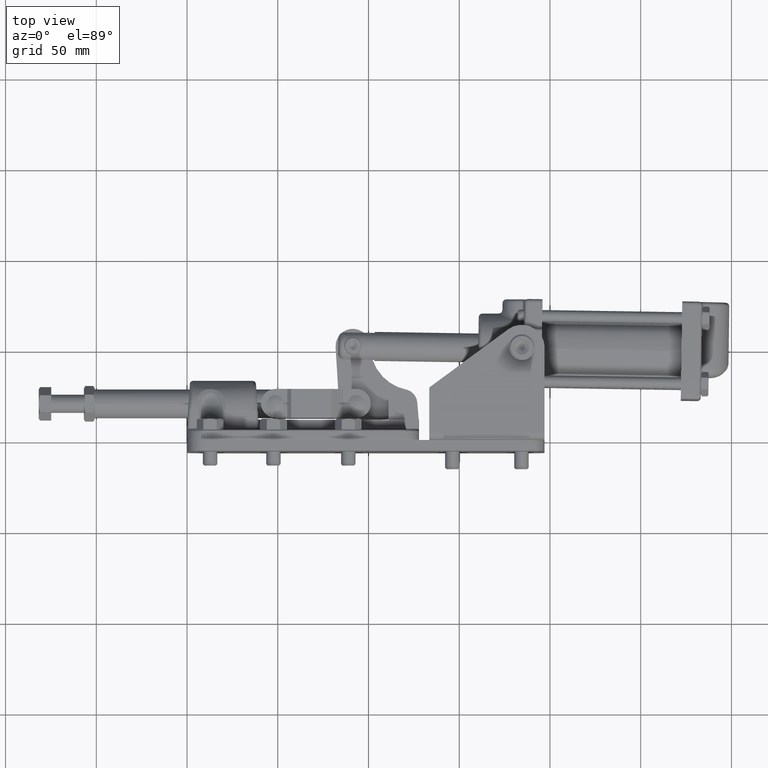
[diagram: clean part render]
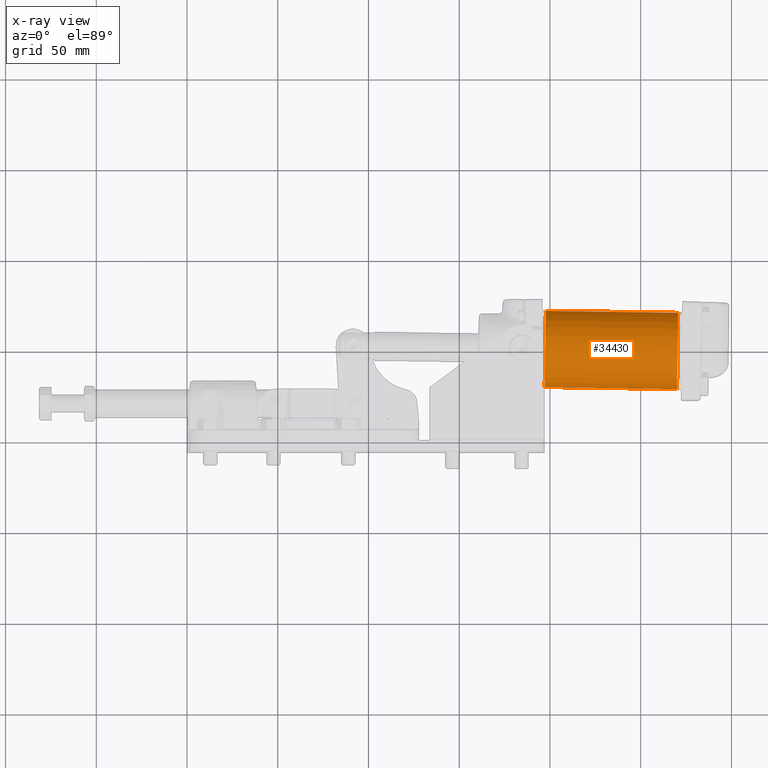
[diagram: x-ray — body ghosted, one internal face saturated and labeled with its STEP entity id]
A machine part, top view, then the same camera in x-ray: the body is ghosted and one INTERNAL B-rep face — a face not visible from any outside direction — is saturated and labeled: STEP entity #34430.
In plain terms, the highlighted cylindrical surface (partial cylindrical patch) has radius 21 mm, axis along (-0.9999, 0.0153, -0).
Its self-contained STEP definition (entity closure, byte-faithful):
#906 = CARTESIAN_POINT ( 'NONE',  ( 331.8796088133971700, 48.73779773850176200, 3.855883951699961100E-014 ) ) ;
#1017 = CARTESIAN_POINT ( 'NONE',  ( 331.5573074281377300, 27.74027117423567600, 3.855883951699961100E-014 ) ) ;
#1272 = AXIS2_PLACEMENT_3D ( 'NONE', #22554, #6576, #25260 ) ;
#4147 = DIRECTION ( 'NONE',  ( 0.9998822173460040200, -0.01534768501235420400, 1.225670896031800800E-016 ) ) ;
#6576 = DIRECTION ( 'NONE',  ( 0.9998822173460041300, -0.01534768501235420100, 9.312529166378306600E-017 ) ) ;
#7347 = ORIENTED_EDGE ( 'NONE', *, *, #31209, .F. ) ;
#8732 = VERTEX_POINT ( 'NONE', #18985 ) ;
#11198 = ORIENTED_EDGE ( 'NONE', *, *, #31759, .F. ) ;
#11312 = VERTEX_POINT ( 'NONE', #11356 ) ;
#11356 = CARTESIAN_POINT ( 'NONE',  ( 197.6907855225025200, 71.80000185815707400, 2.464201865579068500E-014 ) ) ;
#12470 = LINE ( 'NONE', #14464, #13321 ) ;
#12880 = ORIENTED_EDGE ( 'NONE', *, *, #31191, .T. ) ;
#13321 = VECTOR ( 'NONE', #33104, 1000.000000000000100 ) ;
#13488 = EDGE_CURVE ( 'NONE', #23046, #8732, #15372, .T. ) ;
#14228 = CARTESIAN_POINT ( 'NONE',  ( 270.6721885665872900, 70.67977432910534200, 3.358819052592679000E-014 ) ) ;
#14464 = CARTESIAN_POINT ( 'NONE',  ( 332.2019101986566600, 69.73532430276783600, 4.113059779520905500E-014 ) ) ;
#15372 = CIRCLE ( 'NONE', #1272, 21.00000000000000700 ) ;
#16203 = AXIS2_PLACEMENT_3D ( 'NONE', #20134, #4147, #22819 ) ;
#17036 = DIRECTION ( 'NONE',  ( -0.01534768501235525200, -0.9998822173460040200, 0.0000000000000000000 ) ) ;
#17420 = CIRCLE ( 'NONE', #16203, 20.99999999999999600 ) ;
#17574 = CARTESIAN_POINT ( 'NONE',  ( 197.0461827519836800, 29.80494872962491100, 2.207026037758125300E-014 ) ) ;
#18985 = CARTESIAN_POINT ( 'NONE',  ( 270.0275857960684200, 28.68472120057317900, 3.101643224771735200E-014 ) ) ;
#19713 = DIRECTION ( 'NONE',  ( -0.9998822173460040200, 0.01534768501235420400, -1.225670896031800800E-016 ) ) ;
#20134 = CARTESIAN_POINT ( 'NONE',  ( 197.3684841372431200, 50.80247529389099300, 2.207026037758125000E-014 ) ) ;
#21245 = ORIENTED_EDGE ( 'NONE', *, *, #13488, .T. ) ;
#22554 = CARTESIAN_POINT ( 'NONE',  ( 270.3498871813278600, 49.68224776483926800, 3.101643224771735200E-014 ) ) ;
#22819 = DIRECTION ( 'NONE',  ( 0.01534768501235393200, 0.9998822173460040200, 0.0000000000000000000 ) ) ;
#23046 = VERTEX_POINT ( 'NONE', #14228 ) ;
#23629 = VERTEX_POINT ( 'NONE', #17574 ) ;
#24068 = AXIS2_PLACEMENT_3D ( 'NONE', #906, #19713, #17036 ) ;
#25260 = DIRECTION ( 'NONE',  ( 0.01534768501235524700, 0.9998822173460039100, 0.0000000000000000000 ) ) ;
#29541 = EDGE_LOOP ( 'NONE', ( #7347, #21245, #12880, #11198 ) ) ;
#31191 = EDGE_CURVE ( 'NONE', #8732, #23629, #34586, .T. ) ;
#31209 = EDGE_CURVE ( 'NONE', #23046, #11312, #12470, .T. ) ;
#31759 = EDGE_CURVE ( 'NONE', #11312, #23629, #17420, .T. ) ;
#32205 = CYLINDRICAL_SURFACE ( 'NONE', #24068, 21.00000000000000000 ) ;
#32997 = DIRECTION ( 'NONE',  ( -0.9998822173460039100, 0.01534768501235420300, -1.225670896031800600E-016 ) ) ;
#33046 = FACE_OUTER_BOUND ( 'NONE', #29541, .T. ) ;
#33104 = DIRECTION ( 'NONE',  ( -0.9998822173460039100, 0.01534768501235420300, -1.225670896031800600E-016 ) ) ;
#33745 = VECTOR ( 'NONE', #32997, 1000.000000000000100 ) ;
#34430 = ADVANCED_FACE ( 'NONE', ( #33046 ), #32205, .F. ) ;
#34586 = LINE ( 'NONE', #1017, #33745 ) ;